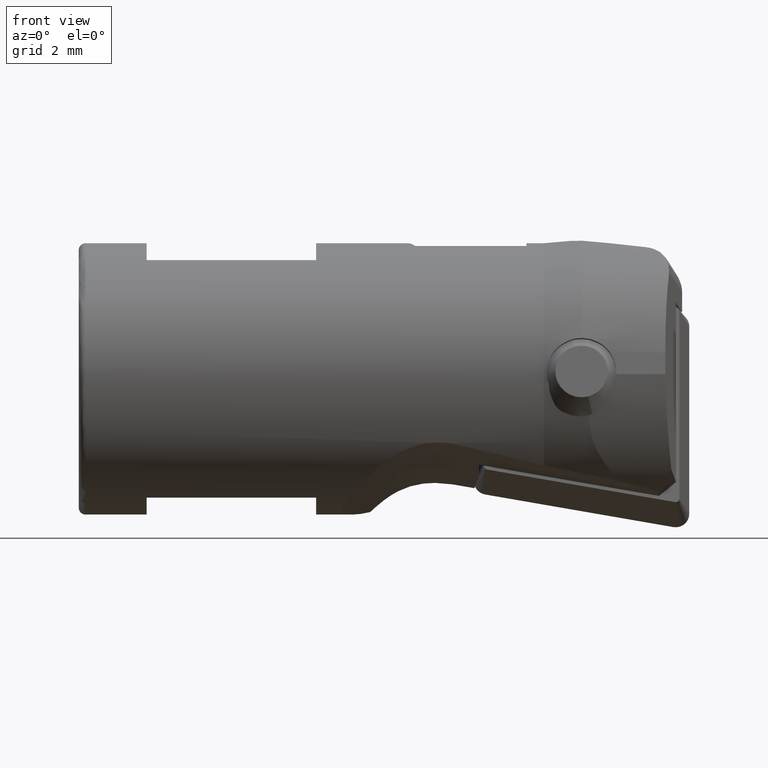
[diagram: clean part render]
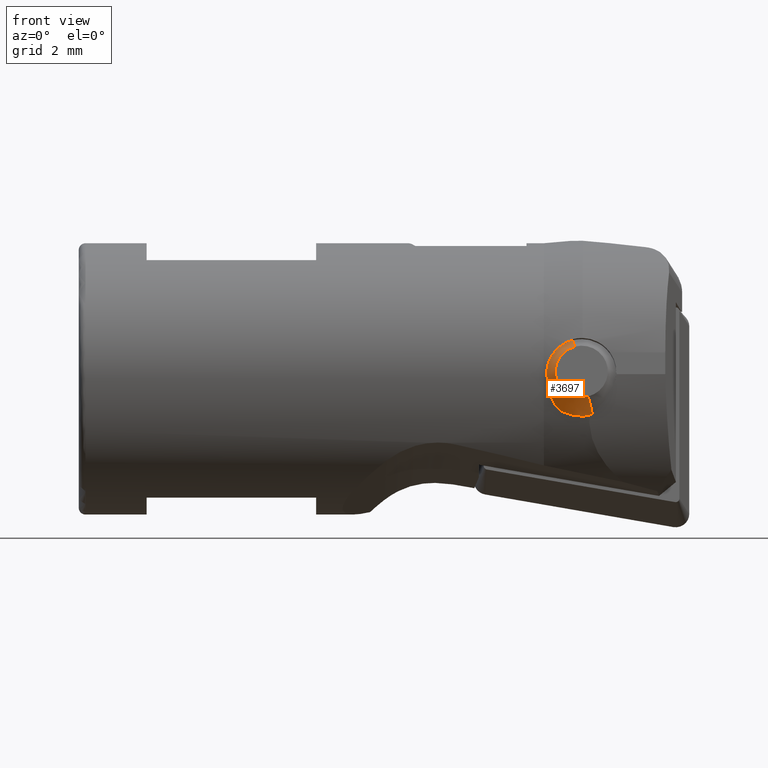
[diagram: same view with one face highlighted and labeled with its STEP entity id]
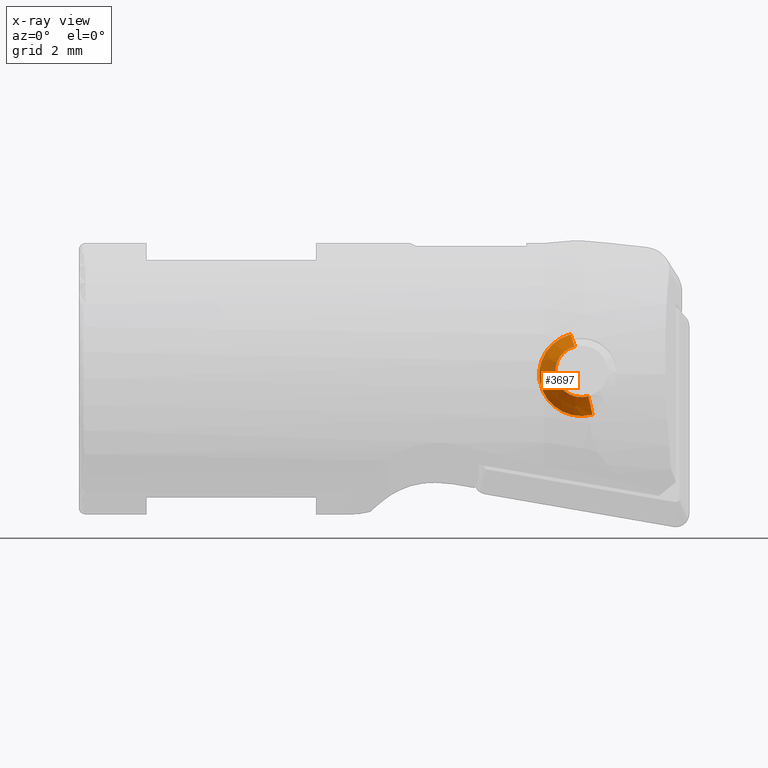
[diagram: x-ray of the same camera — body ghosted, the highlighted face saturated]
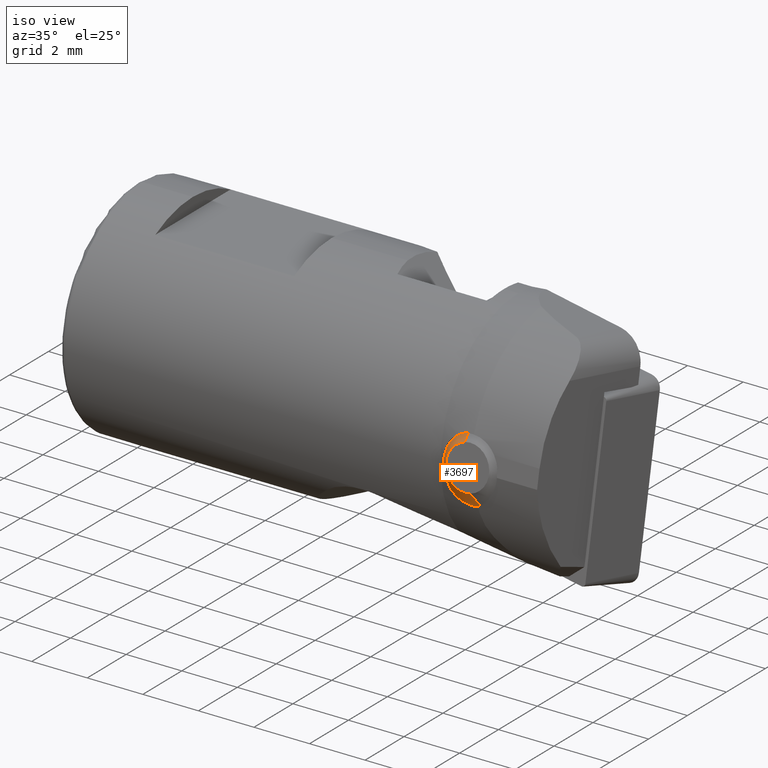
[diagram: same view with one face highlighted and labeled with its STEP entity id]
A machine part, front view. The second image highlights one B-rep face of the part: STEP entity #3697.
The next image is the same camera in x-ray: the body ghosted, the highlighted face saturated — about 0% of this face is hidden behind the body in this view.
A second angle (iso view) of the same face is appended — the face is thin or edge-on in the first view.
In plain terms, the highlighted conical surface has half-angle 45 deg.
Its self-contained STEP definition (entity closure, byte-faithful):
#152 = FACE_OUTER_BOUND ( 'NONE', #1152, .T. ) ;
#262 = EDGE_CURVE ( 'NONE', #4090, #2790, #634, .T. ) ;
#391 = DIRECTION ( 'NONE',  ( -1.000000000000000000, 9.189697613987098100E-016, 1.873501354054944300E-016 ) ) ;
#432 = CIRCLE ( 'NONE', #458, 1.250000000000000200 ) ;
#458 = AXIS2_PLACEMENT_3D ( 'NONE', #4106, #1930, #4471 ) ;
#541 = CIRCLE ( 'NONE', #788, 0.7750000000000002400 ) ;
#634 = LINE ( 'NONE', #3734, #3421 ) ;
#788 = AXIS2_PLACEMENT_3D ( 'NONE', #3092, #910, #3469 ) ;
#847 = VERTEX_POINT ( 'NONE', #2583 ) ;
#910 = DIRECTION ( 'NONE',  ( -1.000000000000000000, 9.189697613987098100E-016, 1.873501354054944300E-016 ) ) ;
#1075 = EDGE_CURVE ( 'NONE', #3105, #847, #3056, .T. ) ;
#1152 = EDGE_LOOP ( 'NONE', ( #4466, #3304, #1741, #4434 ) ) ;
#1198 = DIRECTION ( 'NONE',  ( -0.7071067811865505700, 4.031507546653315900E-016, 0.7071067811865444600 ) ) ;
#1490 = DIRECTION ( 'NONE',  ( 0.0000000000000000000, -3.488284964700547400E-016, 1.000000000000000000 ) ) ;
#1690 = DIRECTION ( 'NONE',  ( -0.7071067811865505700, 9.830643509390460700E-016, -0.7071067811865445800 ) ) ;
#1741 = ORIENTED_EDGE ( 'NONE', *, *, #262, .T. ) ;
#1862 = AXIS2_PLACEMENT_3D ( 'NONE', #4385, #391, #1490 ) ;
#1930 = DIRECTION ( 'NONE',  ( -1.000000000000000000, 9.189697613987098100E-016, 1.873501354054944300E-016 ) ) ;
#2024 = EDGE_CURVE ( 'NONE', #847, #2790, #432, .T. ) ;
#2583 = CARTESIAN_POINT ( 'NONE',  ( 4.525000000000001200, 5.306733138644961800E-014, -1.250000000000005800 ) ) ;
#2790 = VERTEX_POINT ( 'NONE', #3597 ) ;
#2804 = CONICAL_SURFACE ( 'NONE', #1862, 0.7750000000000002400, 0.7853981633974459500 ) ;
#3056 = LINE ( 'NONE', #3503, #3790 ) ;
#3092 = CARTESIAN_POINT ( 'NONE',  ( 5.000000000000023100, 5.204170427930421300E-014, 1.214306433183765000E-014 ) ) ;
#3105 = VERTEX_POINT ( 'NONE', #4149 ) ;
#3304 = ORIENTED_EDGE ( 'NONE', *, *, #3882, .T. ) ;
#3421 = VECTOR ( 'NONE', #1198, 1000.000000000000100 ) ;
#3469 = DIRECTION ( 'NONE',  ( 0.0000000000000000000, -3.488284964700547400E-016, 1.000000000000000000 ) ) ;
#3503 = CARTESIAN_POINT ( 'NONE',  ( 5.000000000000023100, 5.240695649100242600E-014, -0.7749999999999880300 ) ) ;
#3597 = CARTESIAN_POINT ( 'NONE',  ( 4.525000000000001200, 5.204217929538104300E-014, 1.250000000000029500 ) ) ;
#3697 = ADVANCED_FACE ( 'NONE', ( #152 ), #2804, .T. ) ;
#3734 = CARTESIAN_POINT ( 'NONE',  ( 5.000000000000023100, 5.177136219453991900E-014, 0.7750000000000123500 ) ) ;
#3790 = VECTOR ( 'NONE', #1690, 999.9999999999998900 ) ;
#3882 = EDGE_CURVE ( 'NONE', #3105, #4090, #541, .T. ) ;
#4090 = VERTEX_POINT ( 'NONE', #4608 ) ;
#4106 = CARTESIAN_POINT ( 'NONE',  ( 4.525000000000001200, 1.040834085586084300E-014, 3.469446951953614200E-015 ) ) ;
#4149 = CARTESIAN_POINT ( 'NONE',  ( 5.000000000000023100, 5.273714393872602500E-014, -0.7749999999999878100 ) ) ;
#4385 = CARTESIAN_POINT ( 'NONE',  ( 5.000000000000023100, 5.204170427930421300E-014, 1.214306433183765000E-014 ) ) ;
#4434 = ORIENTED_EDGE ( 'NONE', *, *, #2024, .F. ) ;
#4466 = ORIENTED_EDGE ( 'NONE', *, *, #1075, .F. ) ;
#4471 = DIRECTION ( 'NONE',  ( 0.0000000000000000000, -3.488284964700553800E-016, 1.000000000000000000 ) ) ;
#4608 = CARTESIAN_POINT ( 'NONE',  ( 5.000000000000023100, 5.177136219453991900E-014, 0.7750000000000123500 ) ) ;